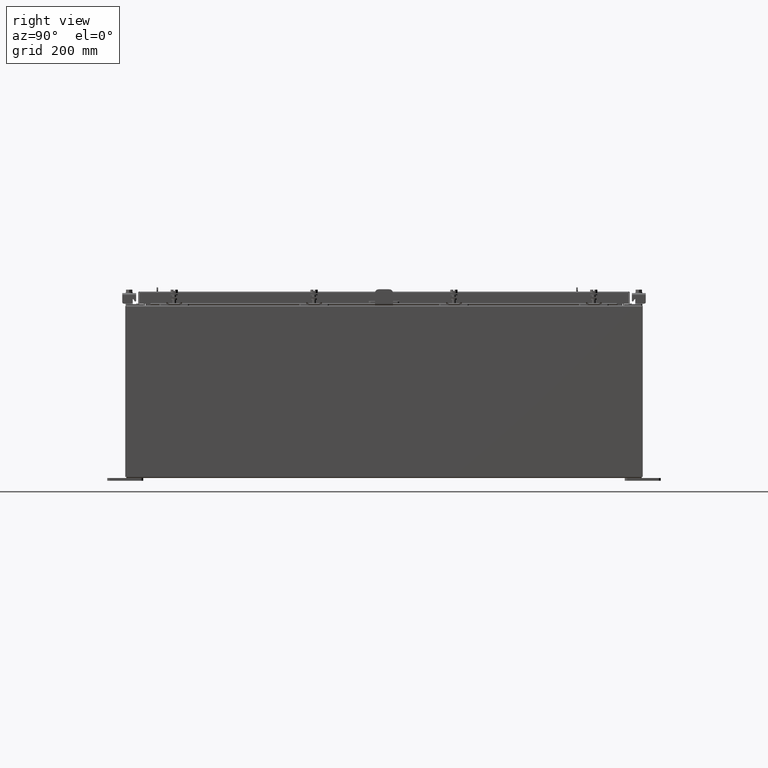
[diagram: clean part render]
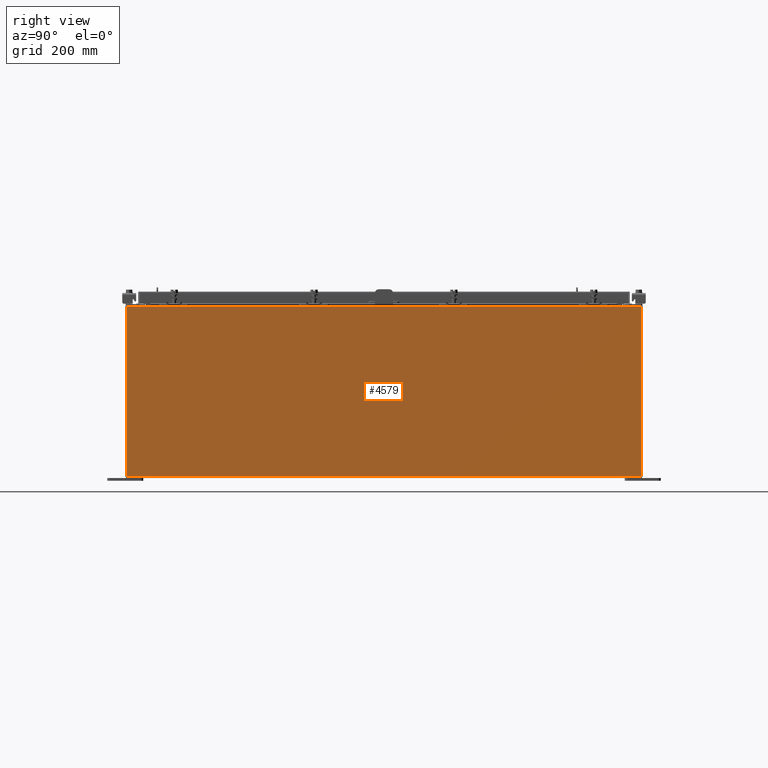
[diagram: same view with one face highlighted and labeled with its STEP entity id]
A machine part, right view. The second image highlights one B-rep face of the part: STEP entity #4579.
In plain terms, the highlighted planar face has unit normal (-1, 0, 0).
Its self-contained STEP definition (entity closure, byte-faithful):
#1217 = VERTEX_POINT ( 'NONE', #10522 ) ;
#1357 = LINE ( 'NONE', #2371, #14781 ) ;
#1932 = DIRECTION ( 'NONE',  ( 3.482016343714355500E-015, -1.832640180902292400E-016, 1.000000000000000000 ) ) ;
#2058 = VERTEX_POINT ( 'NONE', #20338 ) ;
#2371 = CARTESIAN_POINT ( 'NONE',  ( 15.00000000000004100, 17.92530000000000000, 11.83760000000000000 ) ) ;
#2798 = EDGE_LOOP ( 'NONE', ( #13431, #15353, #10855, #12112 ) ) ;
#3165 = LINE ( 'NONE', #3473, #12012 ) ;
#3473 = CARTESIAN_POINT ( 'NONE',  ( 14.99999999999999800, -17.92530000000000000, 0.01300000000000010700 ) ) ;
#4073 = AXIS2_PLACEMENT_3D ( 'NONE', #7057, #5253, #5173 ) ;
#4296 = CARTESIAN_POINT ( 'NONE',  ( 14.99999999999999800, -17.92530000000000000, -5.245148147835385400E-014 ) ) ;
#4579 = ADVANCED_FACE ( 'NONE', ( #12239 ), #5538, .F. ) ;
#5173 = DIRECTION ( 'NONE',  ( 3.482016343714355100E-015, 0.0000000000000000000, 1.000000000000000000 ) ) ;
#5245 = DIRECTION ( 'NONE',  ( 2.122662239958547800E-031, -1.000000000000000000, 6.096072018129156600E-017 ) ) ;
#5253 = DIRECTION ( 'NONE',  ( -1.000000000000000000, 0.0000000000000000000, 3.482016343714355100E-015 ) ) ;
#5538 = PLANE ( 'NONE',  #4073 ) ;
#6089 = DIRECTION ( 'NONE',  ( -3.482016343714355500E-015, 0.0000000000000000000, -1.000000000000000000 ) ) ;
#7057 = CARTESIAN_POINT ( 'NONE',  ( 14.99999999999999800, 0.0000000000000000000, -5.245148147835385400E-014 ) ) ;
#7805 = CARTESIAN_POINT ( 'NONE',  ( 14.99999999999999800, 17.92530000000000000, 0.01299999999999792100 ) ) ;
#8210 = EDGE_CURVE ( 'NONE', #18114, #1217, #9246, .T. ) ;
#9246 = LINE ( 'NONE', #12466, #9787 ) ;
#9504 = DIRECTION ( 'NONE',  ( -0.0000000000000000000, -1.000000000000000000, -0.0000000000000000000 ) ) ;
#9787 = VECTOR ( 'NONE', #1932, 39.37007874015748100 ) ;
#9872 = VECTOR ( 'NONE', #6089, 39.37007874015748100 ) ;
#10431 = LINE ( 'NONE', #4296, #9872 ) ;
#10522 = CARTESIAN_POINT ( 'NONE',  ( 15.00000000000004100, 17.92530000000000000, 11.83760000000000000 ) ) ;
#10855 = ORIENTED_EDGE ( 'NONE', *, *, #14949, .F. ) ;
#11409 = EDGE_CURVE ( 'NONE', #1217, #2058, #1357, .T. ) ;
#12012 = VECTOR ( 'NONE', #5245, 39.37007874015748100 ) ;
#12112 = ORIENTED_EDGE ( 'NONE', *, *, #8210, .T. ) ;
#12239 = FACE_OUTER_BOUND ( 'NONE', #2798, .T. ) ;
#12466 = CARTESIAN_POINT ( 'NONE',  ( 14.99999999999999800, 17.92530000000000000, -4.917326388595673900E-014 ) ) ;
#13431 = ORIENTED_EDGE ( 'NONE', *, *, #11409, .T. ) ;
#14012 = EDGE_CURVE ( 'NONE', #2058, #21523, #10431, .T. ) ;
#14781 = VECTOR ( 'NONE', #9504, 39.37007874015748100 ) ;
#14949 = EDGE_CURVE ( 'NONE', #18114, #21523, #3165, .T. ) ;
#15353 = ORIENTED_EDGE ( 'NONE', *, *, #14012, .T. ) ;
#16161 = CARTESIAN_POINT ( 'NONE',  ( 14.99999999999999800, -17.92530000000000000, 0.01300000000000010700 ) ) ;
#18114 = VERTEX_POINT ( 'NONE', #7805 ) ;
#20338 = CARTESIAN_POINT ( 'NONE',  ( 15.00000000000004100, -17.92530000000000000, 11.83760000000000000 ) ) ;
#21523 = VERTEX_POINT ( 'NONE', #16161 ) ;